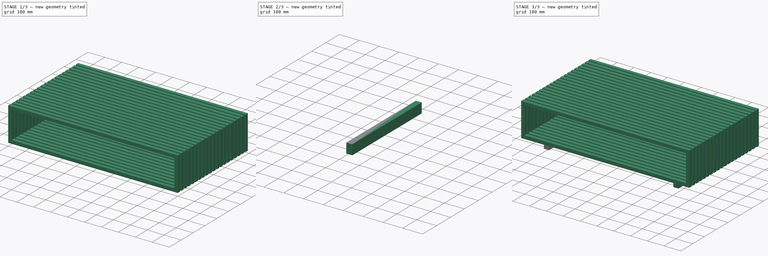
[diagram: build sequence overview — one tinted view per stage of 3, left to right]
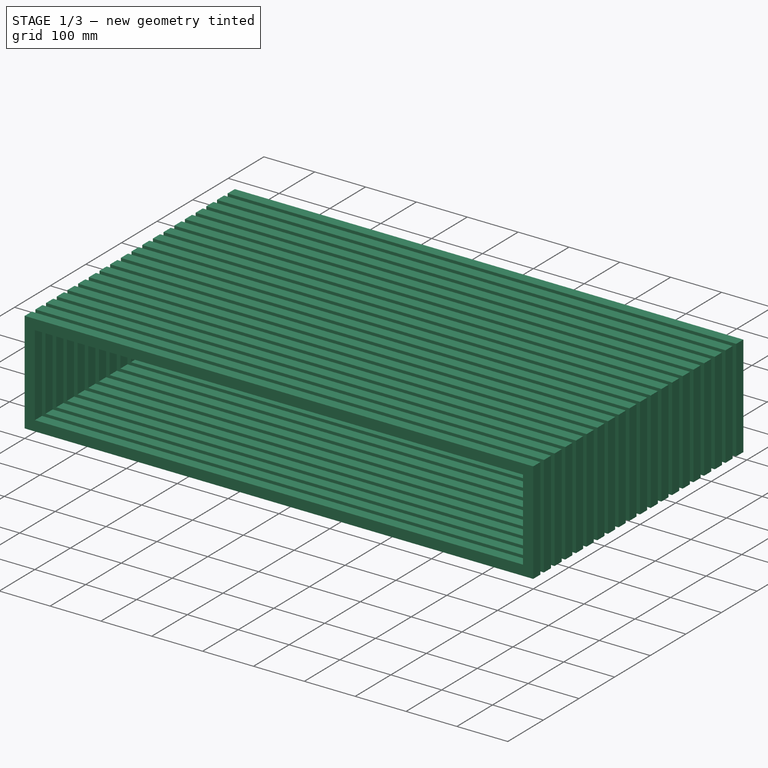
[diagram: stage 1 of 3 — iso view after this stage's code; geometry added in this stage tinted green]
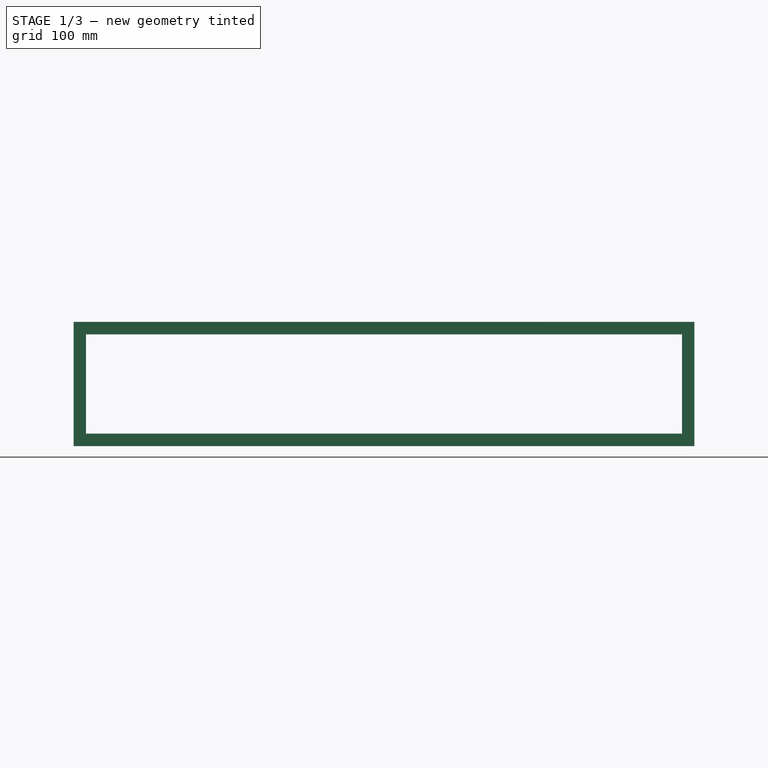
[diagram: stage 1 of 3 — front view after this stage's code; geometry added in this stage tinted green]
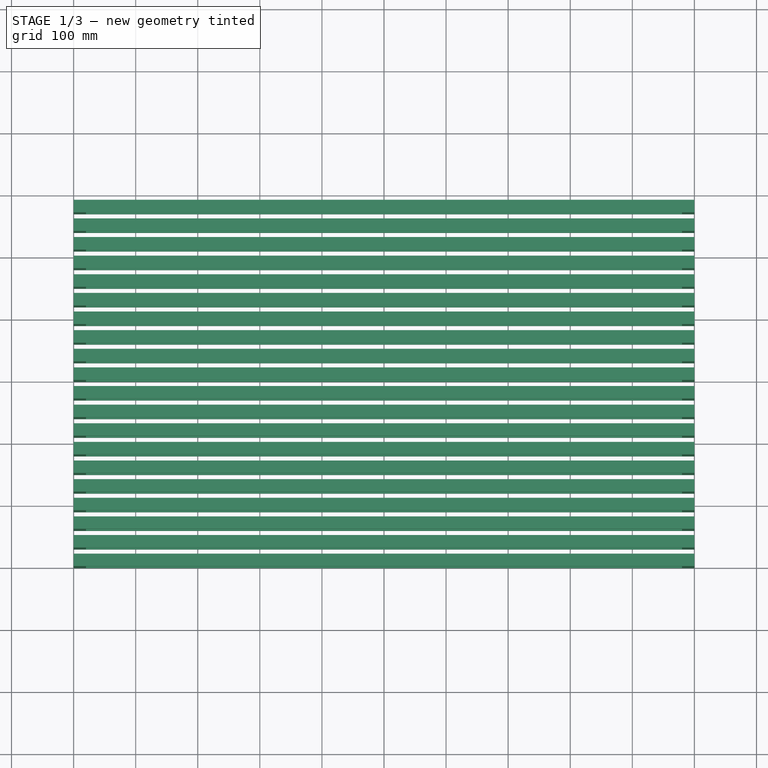
[diagram: stage 1 of 3 — top view after this stage's code; geometry added in this stage tinted green]
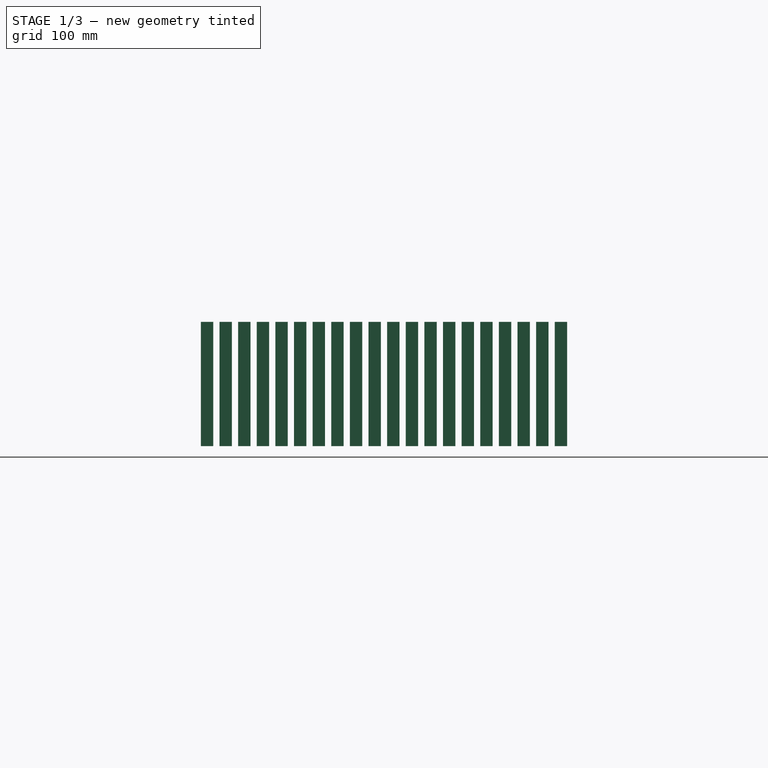
[diagram: stage 1 of 3 — right view after this stage's code; geometry added in this stage tinted green]
FCSTD DOCUMENT  (FreeCAD 0.21R33668 +26 (Git))
Label: Mesa Centro
License: All rights reserved
objects: Part::FeaturePython×3, Sketcher::SketchObject×2, Part::Extrusion×2, Part::Compound×1
note: 8 computed .brp shape members not serialized (recipe doc carries the construction recipe); baked Part::Feature solids carry a one-line shape summary decoded from their .brp

FEATURE [Part::FeaturePython] Point  label="Propriedades Mesa Centro"  # WARN: FeaturePython — macro-defined, semantics opaque (R4)
  Altura = 250
  Comprimento = 1000
  Largura = 600
  LarguraRipas = 20
  X = 0
  Y = 0
  Z = 0
FEATURE [Sketcher::SketchObject] Sketch
  FullyConstrained = true
  Placement = pos=(0,0,0) rot=(1,0,0;1.5708rad)
  expr: Constraints[17] = <<Propriedades Mesa Centro>>.Comprimento
  expr: Constraints[18] = <<Propriedades Mesa Centro>>.Altura - 5 cm
  expr: Constraints[19] = <<Propriedades Mesa Centro>>.LarguraRipas
  expr: Constraints[20] = <<Propriedades Mesa Centro>>.LarguraRipas
  expr: Constraints[21] = <<Propriedades Mesa Centro>>.LarguraRipas
  expr: Constraints[22] = <<Propriedades Mesa Centro>>.LarguraRipas
  sketch-geometry (8):
    g0: LineSegment StartX=0 StartY=0 StartZ=0 EndX=1000 EndY=0 EndZ=0
    g1: LineSegment StartX=1000 StartY=0 StartZ=0 EndX=1000 EndY=200 EndZ=0
    g2: LineSegment StartX=1000 StartY=200 StartZ=0 EndX=0 EndY=200 EndZ=0
    g3: LineSegment StartX=0 StartY=200 StartZ=0 EndX=0 EndY=0 EndZ=0
    g4: LineSegment StartX=20 StartY=180 StartZ=0 EndX=980 EndY=180 EndZ=0
    g5: LineSegment StartX=980 StartY=180 StartZ=0 EndX=980 EndY=20 EndZ=0
    g6: LineSegment StartX=980 StartY=20 StartZ=0 EndX=20 EndY=20 EndZ=0
    g7: LineSegment StartX=20 StartY=20 StartZ=0 EndX=20 EndY=180 EndZ=0
  constraints (23):
    c: Coincident(g0,g1)
    c: Coincident(g1,g2)
    c: Coincident(g2,g3)
    c: Coincident(g3,g0)
    c: Horizontal(g0)
    c: Horizontal(g2)
    c: Vertical(g1)
    c: Vertical(g3)
    c: Coincident(g0,g-1)
    c: Coincident(g4,g5)
    c: Coincident(g5,g6)
    c: Coincident(g6,g7)
    c: Coincident(g7,g4)
    c: Horizontal(g4)
    c: Horizontal(g6)
    c: Vertical(g5)
    c: Vertical(g7)
    c: DistanceX(g2,g2) = 1000
    c: DistanceY(g1,g1) = 200
    c: DistanceY(g4,g1) = 20
    c: DistanceX(g4,g1) = 20
    c: DistanceX(g0,g6) = 20
    c: DistanceY(g0,g6) = 20
FEATURE [Part::Extrusion] Extrude
  Base = -> Sketch
  Dir = (0,-1,2e-16)
  DirMode = 2
  FaceMakerClass = Part::FaceMakerBullseye
  LengthFwd = 0
  LengthRev = 20
  Solid = true
  Symmetric = false
  expr: LengthRev = <<Propriedades Mesa Centro>>.LarguraRipas
FEATURE [Part::FeaturePython] Array  label="ripas"  # Draft array (typed FeaturePython)
  Angle = 360
  ArrayType = 0
  Axis = (0,0,1)
  Base = -> Extrude
  Center = (0,0,0)
  Count = 20
  Fuse = true
  IntervalAxis = (0,0,0)
  IntervalX = (100,0,0)
  IntervalY = (0,30,0)
  IntervalZ = (0,0,100)
  NumberCircles = 3
  NumberPolar = 5
  NumberX = 1
  NumberY = 20
  NumberZ = 1
  Placement = pos=(0,0,50) rot=(0,0,1;0rad)
  RadialDistance = 50
  Symmetry = 1
  TangentialDistance = 25
  expr: .IntervalY.y = <<Propriedades Mesa Centro>>.LarguraRipas * 1.5
  expr: NumberY = <<Propriedades Mesa Centro>>.Largura / (1.5 * <<Propriedades Mesa Centro>>.LarguraRipas)
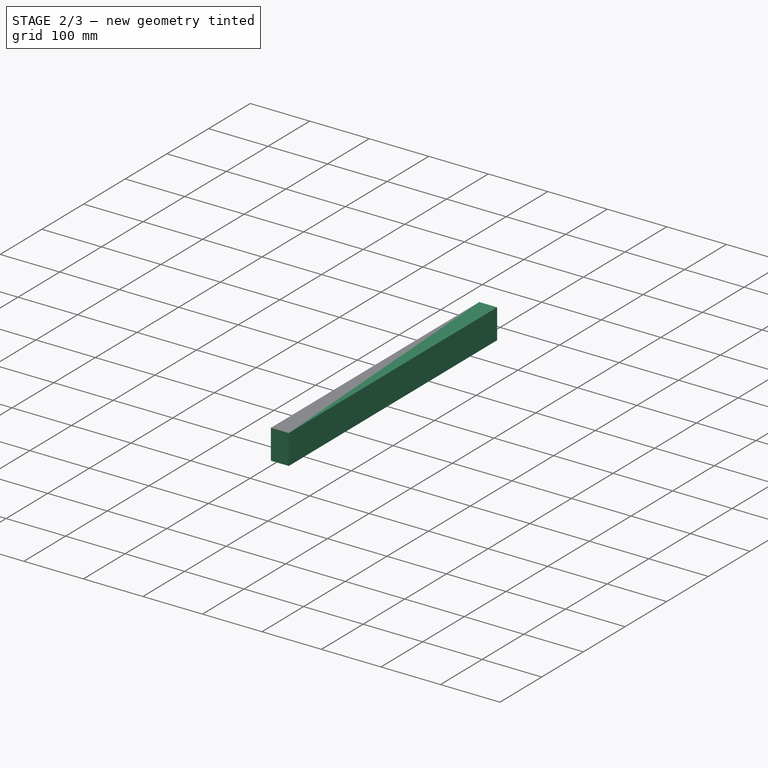
[diagram: stage 2 of 3 — iso view after this stage's code; geometry added in this stage tinted green]
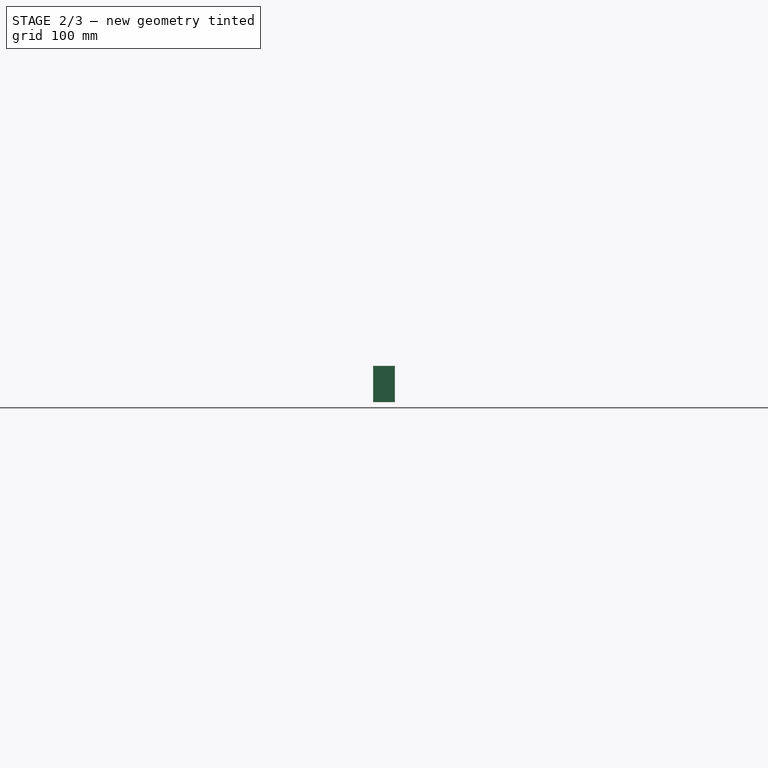
[diagram: stage 2 of 3 — front view after this stage's code; geometry added in this stage tinted green]
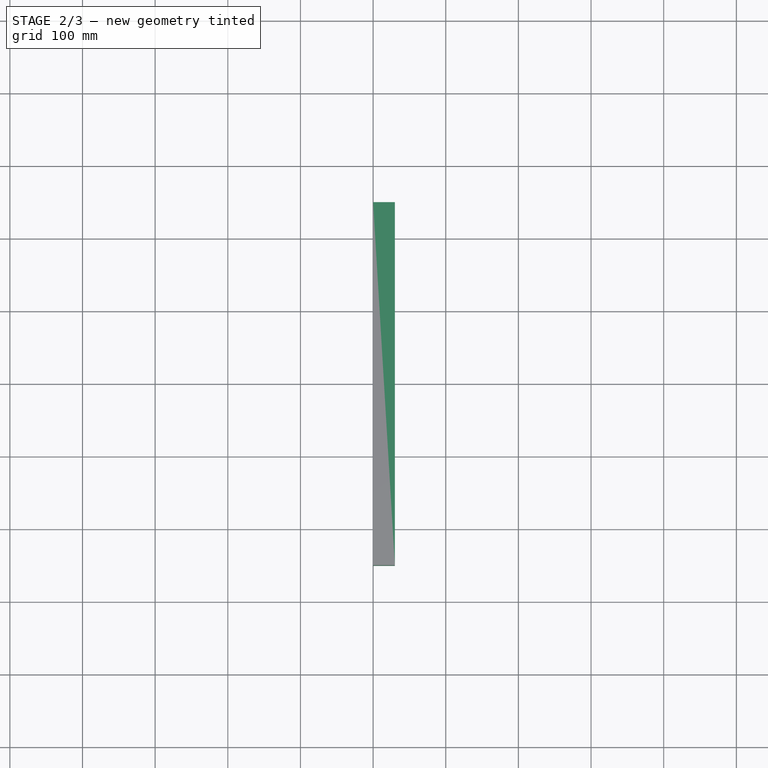
[diagram: stage 2 of 3 — top view after this stage's code; geometry added in this stage tinted green]
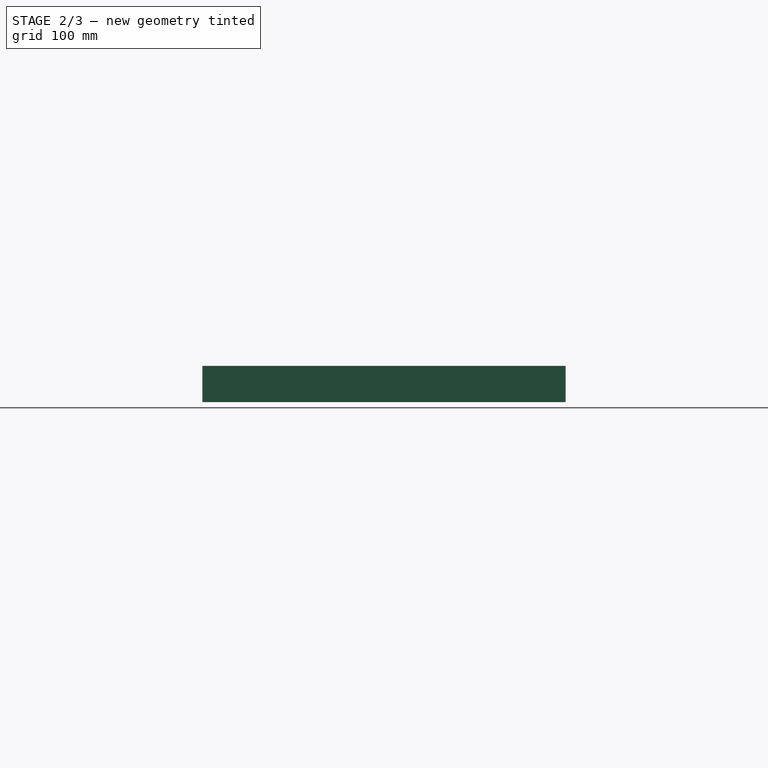
[diagram: stage 2 of 3 — right view after this stage's code; geometry added in this stage tinted green]
FEATURE [Sketcher::SketchObject] Sketch001
  FullyConstrained = true
  Placement = pos=(0,0,0) rot=(1,0,0;1.5708rad)
  expr: Constraints[9] = <<Propriedades Mesa Centro>>.LarguraRipas * 1.5
  sketch-geometry (4):
    g0: LineSegment StartX=0 StartY=0 StartZ=0 EndX=30 EndY=0 EndZ=0
    g1: LineSegment StartX=30 StartY=0 StartZ=0 EndX=30 EndY=50 EndZ=0
    g2: LineSegment StartX=30 StartY=50 StartZ=0 EndX=0 EndY=50 EndZ=0
    g3: LineSegment StartX=0 StartY=50 StartZ=0 EndX=0 EndY=0 EndZ=0
  constraints (11):
    c: Coincident(g0,g1)
    c: Coincident(g1,g2)
    c: Coincident(g2,g3)
    c: Coincident(g3,g0)
    c: Horizontal(g0)
    c: Horizontal(g2)
    c: Vertical(g1)
    c: Vertical(g3)
    c: Coincident(g0,g-1)
    c: DistanceX(g2,g2) = 30
    c: DistanceY(g1,g1) = 50
FEATURE [Part::Extrusion] Extrude001
  Base = -> Sketch001
  Dir = (0,-1,2e-16)
  DirMode = 2
  FaceMakerClass = Part::FaceMakerBullseye
  LengthFwd = 0
  LengthRev = 500
  Placement = pos=(100,50,0) rot=(0,0,1;0rad)
  Solid = true
  Symmetric = false
  expr: .Placement.Base.x = 10 cm
  expr: .Placement.Base.y = 5 cm
  expr: LengthRev = <<ripas>>.NumberY * <<ripas>>.IntervalY.y - 10 cm
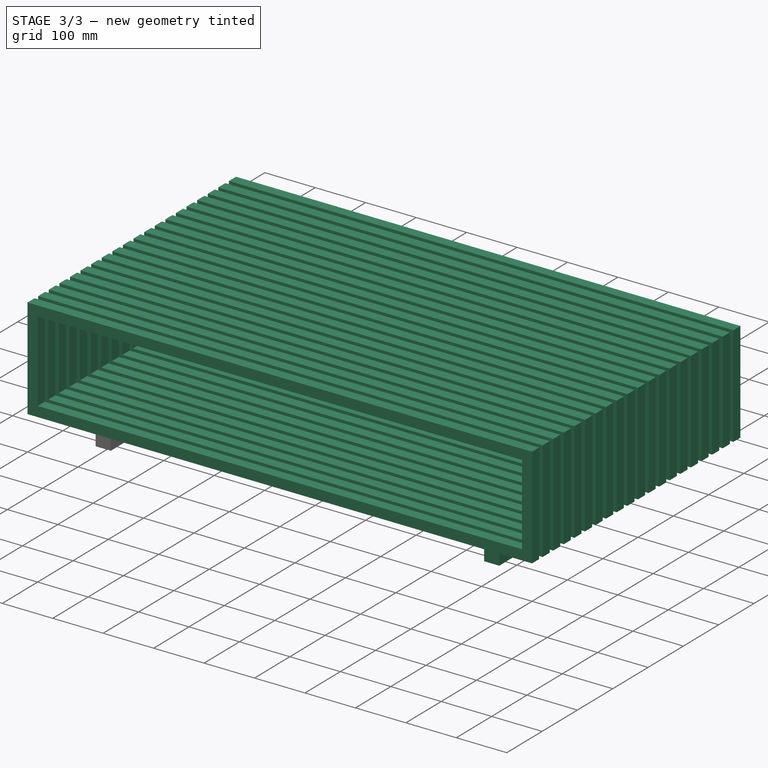
[diagram: stage 3 of 3 — iso view after this stage's code; geometry added in this stage tinted green]
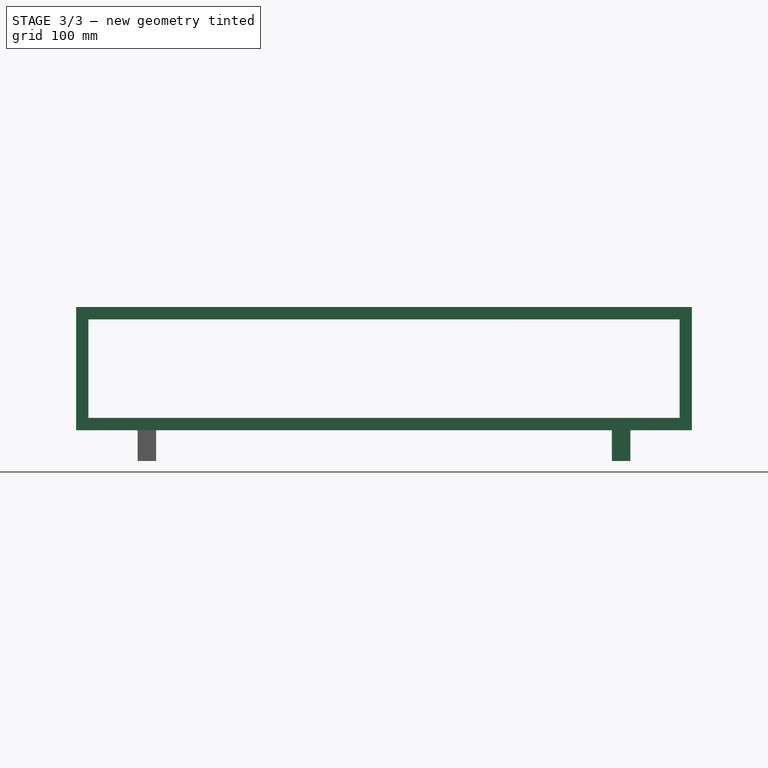
[diagram: stage 3 of 3 — front view after this stage's code; geometry added in this stage tinted green]
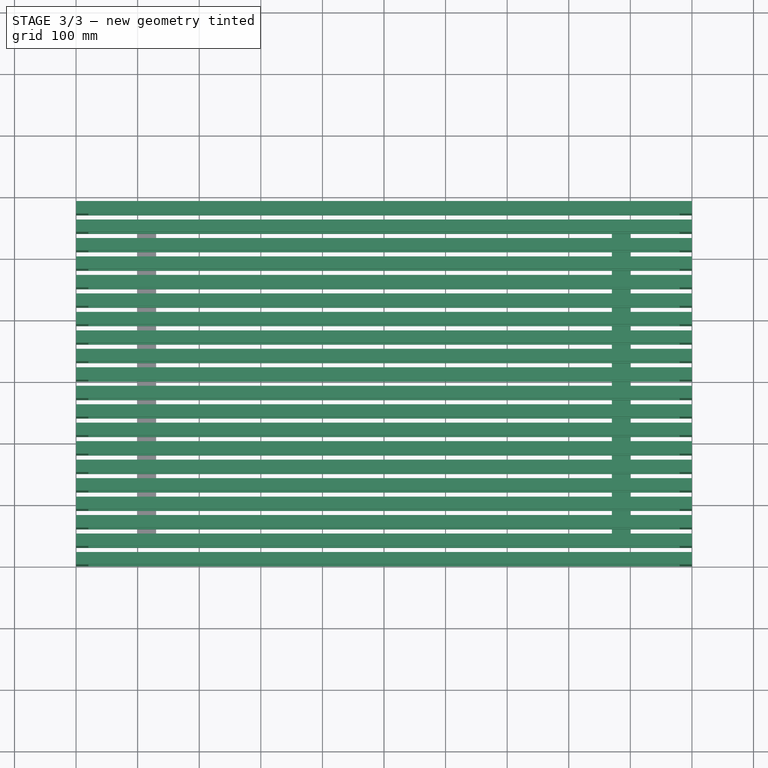
[diagram: stage 3 of 3 — top view after this stage's code; geometry added in this stage tinted green]
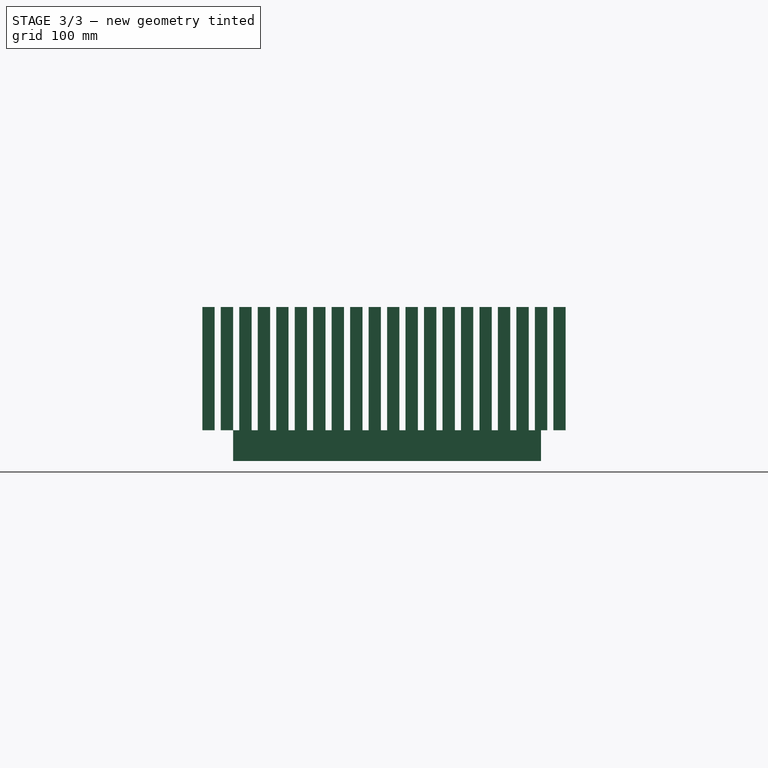
[diagram: stage 3 of 3 — right view after this stage's code; geometry added in this stage tinted green]
FEATURE [Part::FeaturePython] Clone  label="Extrude002"  # Draft clone (typed FeaturePython)
  AttacherType = Attacher::AttachEngine3D
  Fuse = false
  Objects = -> [Extrude001]
  Placement = pos=(870,50,0) rot=(0,0,1;0rad)
  Scale = (1,1,1)
  expr: .Placement.Base.x = <<Propriedades Mesa Centro>>.Comprimento - 10 cm - <<Propriedades Mesa Centro>>.LarguraRipas * 1.5
FEATURE [Part::Compound] Compound  label="Mesa Centro"
  Links = -> [Point,Array,Extrude001,Clone]
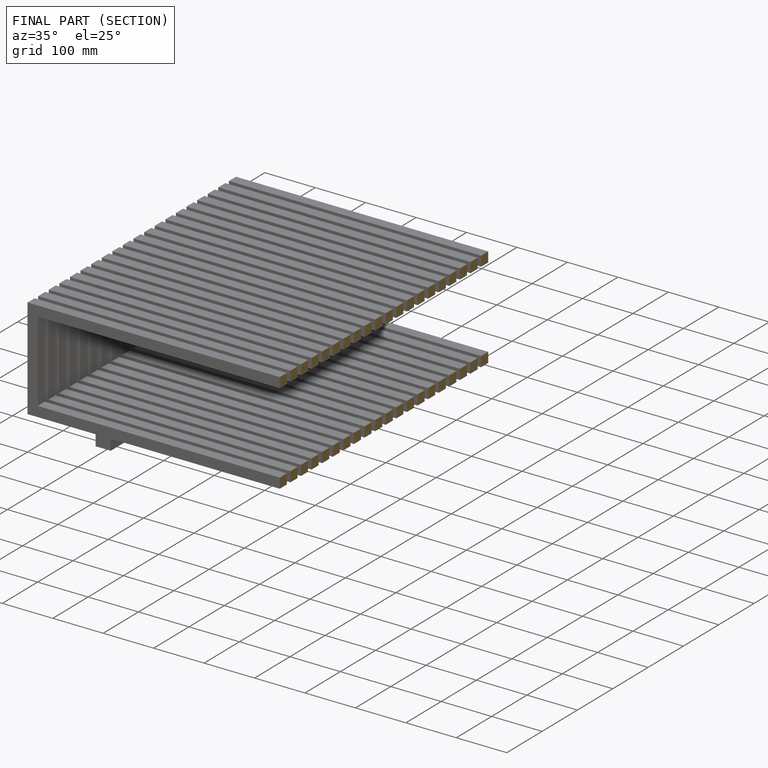
[diagram: finished part — half-section view (interior)]
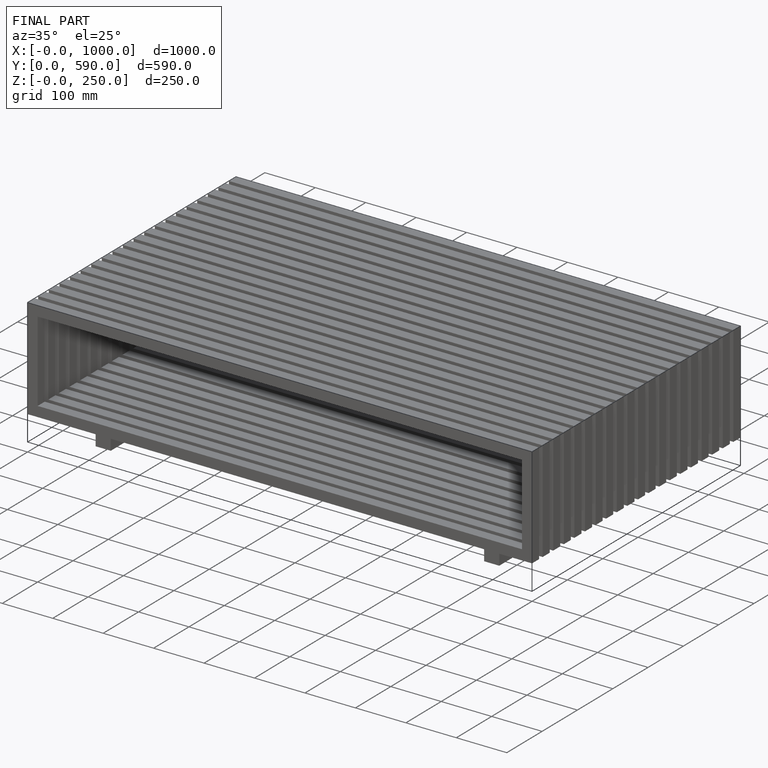
[diagram: finished part — iso view with bounding-box wireframe]
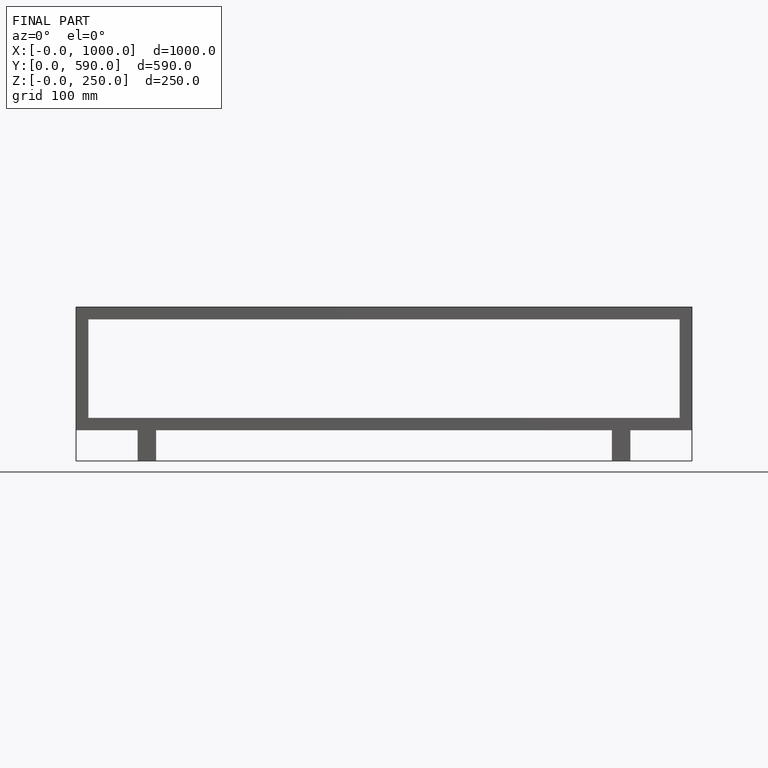
[diagram: finished part — front view with bounding-box wireframe]
